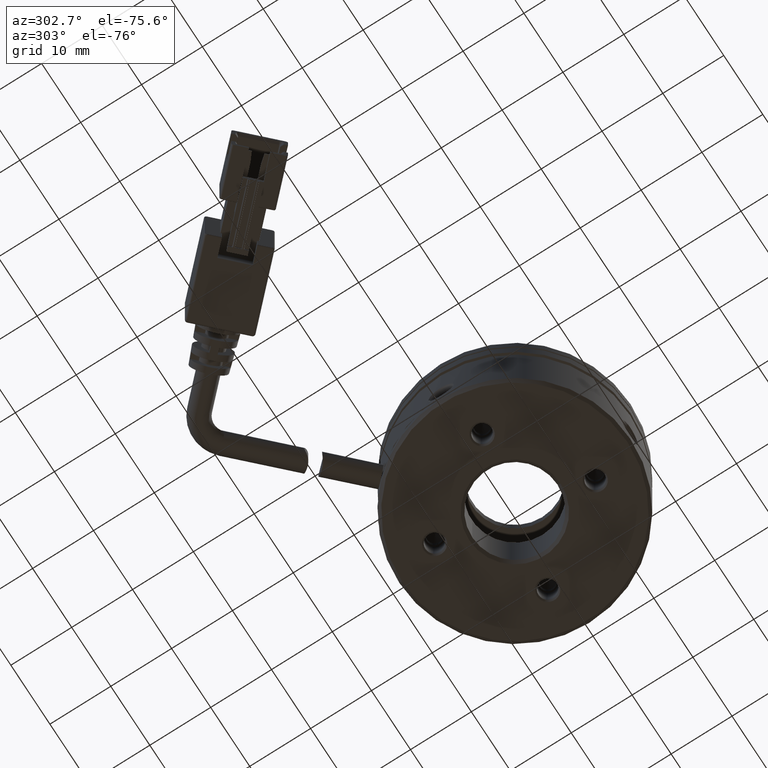
[diagram: clean part render]
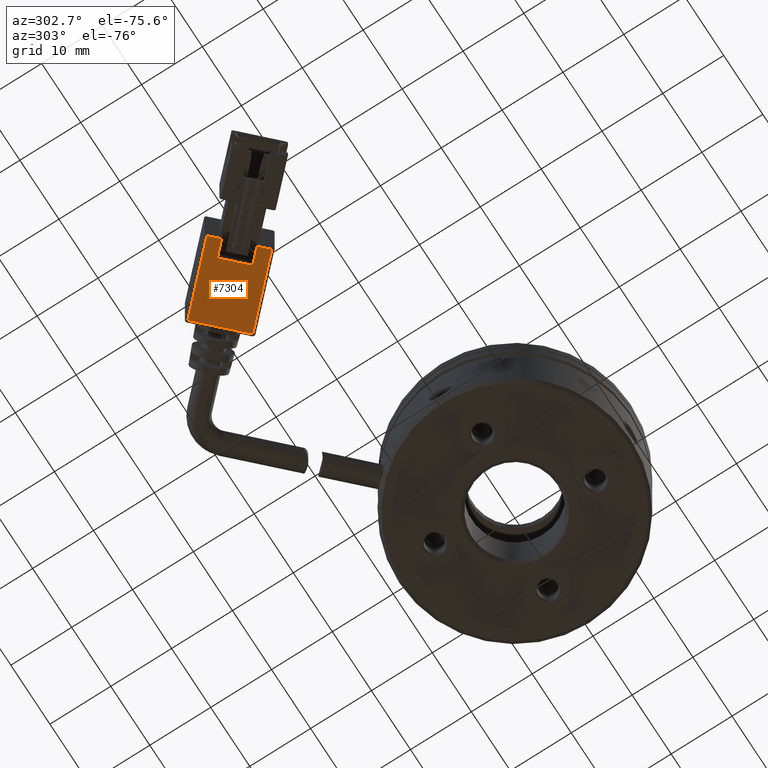
[diagram: same view with one face highlighted and labeled with its STEP entity id]
A machine part, auxiliary view. The second image highlights one B-rep face of the part: STEP entity #7304.
In plain terms, the highlighted planar face has unit normal (-0, 0, 1).
Its self-contained STEP definition (entity closure, byte-faithful):
#388 = DIRECTION ( 'NONE',  ( 0.7071067811865522400, -0.7071067811865428000, 3.020538365981216500E-016 ) ) ;
#424 = EDGE_CURVE ( 'NONE', #7863, #3379, #24729, .T. ) ;
#631 = ORIENTED_EDGE ( 'NONE', *, *, #3839, .F. ) ;
#1102 = VERTEX_POINT ( 'NONE', #16644 ) ;
#2399 = CARTESIAN_POINT ( 'NONE',  ( -56.78067452927975000, 14.63711037056118500, -10.13508365365980500 ) ) ;
#2687 = VECTOR ( 'NONE', #388, 1000.000000000000000 ) ;
#3047 = CARTESIAN_POINT ( 'NONE',  ( -49.85102807365152700, 7.424621202458443000, -10.13508365365980300 ) ) ;
#3108 = LINE ( 'NONE', #3821, #10883 ) ;
#3379 = VERTEX_POINT ( 'NONE', #13252 ) ;
#3488 = ORIENTED_EDGE ( 'NONE', *, *, #17265, .F. ) ;
#3735 = LINE ( 'NONE', #6336, #12700 ) ;
#3821 = CARTESIAN_POINT ( 'NONE',  ( -47.72970773009190300, 9.545941546018102700, -10.13508365365980300 ) ) ;
#3839 = EDGE_CURVE ( 'NONE', #7510, #7233, #3108, .T. ) ;
#4015 = VECTOR ( 'NONE', #16318, 999.9999999999998900 ) ;
#4418 = FACE_OUTER_BOUND ( 'NONE', #24229, .T. ) ;
#4586 = EDGE_CURVE ( 'NONE', #16395, #1102, #17335, .T. ) ;
#4733 = CARTESIAN_POINT ( 'NONE',  ( -56.49783181680512500, 14.35426765808656700, -10.13508365365980700 ) ) ;
#4877 = PLANE ( 'NONE',  #5525 ) ;
#4946 = ORIENTED_EDGE ( 'NONE', *, *, #424, .F. ) ;
#4962 = DIRECTION ( 'NONE',  ( -0.7071067811865522400, 0.7071067811865428000, -3.020538365981216500E-016 ) ) ;
#5525 = AXIS2_PLACEMENT_3D ( 'NONE', #3047, #16420, #4962 ) ;
#5772 = ORIENTED_EDGE ( 'NONE', *, *, #20619, .T. ) ;
#5858 = CARTESIAN_POINT ( 'NONE',  ( -56.78067452927975000, 14.63711037056118500, -10.13508365365980500 ) ) ;
#5887 = DIRECTION ( 'NONE',  ( 0.7071067811865428000, 0.7071067811865522400, 1.682570589009794600E-016 ) ) ;
#6336 = CARTESIAN_POINT ( 'NONE',  ( -56.63925317304242700, 14.21284630184925400, -10.13508365365980700 ) ) ;
#6570 = CARTESIAN_POINT ( 'NONE',  ( -49.49747468305829300, 11.31370849898446600, -10.13508365365980300 ) ) ;
#6946 = CARTESIAN_POINT ( 'NONE',  ( -49.99244942988884300, 7.848885271170374300, -10.13508365365980200 ) ) ;
#7233 = VERTEX_POINT ( 'NONE', #6570 ) ;
#7304 = ADVANCED_FACE ( 'NONE', ( #4418 ), #4877, .F. ) ;
#7510 = VERTEX_POINT ( 'NONE', #15161 ) ;
#7757 = DIRECTION ( 'NONE',  ( 0.7071067811865522400, -0.7071067811865428000, 3.020538365981216500E-016 ) ) ;
#7811 = VERTEX_POINT ( 'NONE', #16392 ) ;
#7863 = VERTEX_POINT ( 'NONE', #6946 ) ;
#8227 = DIRECTION ( 'NONE',  ( -0.7071067811865428000, -0.7071067811865522400, -1.682570589009794600E-016 ) ) ;
#8787 = EDGE_CURVE ( 'NONE', #13388, #7863, #15660, .T. ) ;
#9502 = VECTOR ( 'NONE', #5887, 1000.000000000000000 ) ;
#10145 = ORIENTED_EDGE ( 'NONE', *, *, #23973, .T. ) ;
#10883 = VECTOR ( 'NONE', #15292, 1000.000000000000000 ) ;
#11951 = CARTESIAN_POINT ( 'NONE',  ( -55.15432893255067600, 12.72792206135752700, -10.13508365365980700 ) ) ;
#12700 = VECTOR ( 'NONE', #8227, 1000.000000000000000 ) ;
#13233 = CARTESIAN_POINT ( 'NONE',  ( -40.94148263070108800, 16.33416664540900200, -10.13508365365980200 ) ) ;
#13252 = CARTESIAN_POINT ( 'NONE',  ( -41.22432534317570700, 16.61700935788362100, -10.13508365365980000 ) ) ;
#13388 = VERTEX_POINT ( 'NONE', #21563 ) ;
#15108 = EDGE_CURVE ( 'NONE', #3379, #7811, #15729, .T. ) ;
#15161 = CARTESIAN_POINT ( 'NONE',  ( -53.03300858899105200, 14.84924240491717900, -10.13508365365980500 ) ) ;
#15292 = DIRECTION ( 'NONE',  ( 0.7071067811865522400, -0.7071067811865428000, 3.020538365981216500E-016 ) ) ;
#15660 = LINE ( 'NONE', #5858, #20118 ) ;
#15729 = LINE ( 'NONE', #13233, #20805 ) ;
#15965 = CARTESIAN_POINT ( 'NONE',  ( -50.13387078612615300, 7.707463914933061500, -10.13508365365980300 ) ) ;
#16318 = DIRECTION ( 'NONE',  ( 0.7071067811865430200, 0.7071067811865521200, 1.682570589009795100E-016 ) ) ;
#16392 = CARTESIAN_POINT ( 'NONE',  ( -47.72970773009198800, 23.12239174479981300, -10.13508365365980300 ) ) ;
#16395 = VERTEX_POINT ( 'NONE', #4733 ) ;
#16420 = DIRECTION ( 'NONE',  ( -3.325600234733327400E-016, 9.460860881055602200E-017, 1.000000000000000000 ) ) ;
#16644 = CARTESIAN_POINT ( 'NONE',  ( -55.01290757631337400, 12.86934341759483600, -10.13508365365980500 ) ) ;
#17265 = EDGE_CURVE ( 'NONE', #7811, #16395, #3735, .T. ) ;
#17335 = LINE ( 'NONE', #2399, #2687 ) ;
#17452 = LINE ( 'NONE', #11951, #22516 ) ;
#17928 = ORIENTED_EDGE ( 'NONE', *, *, #8787, .F. ) ;
#19265 = LINE ( 'NONE', #19969, #4015 ) ;
#19969 = CARTESIAN_POINT ( 'NONE',  ( -51.61879502661791700, 9.192388155424808400, -10.13508365365980300 ) ) ;
#20118 = VECTOR ( 'NONE', #7757, 1000.000000000000000 ) ;
#20619 = EDGE_CURVE ( 'NONE', #7510, #1102, #17452, .T. ) ;
#20805 = VECTOR ( 'NONE', #24649, 1000.000000000000000 ) ;
#21563 = CARTESIAN_POINT ( 'NONE',  ( -51.47737367038061500, 9.333809511662121100, -10.13508365365980300 ) ) ;
#22243 = ORIENTED_EDGE ( 'NONE', *, *, #4586, .F. ) ;
#22516 = VECTOR ( 'NONE', #23407, 999.9999999999998900 ) ;
#23345 = ORIENTED_EDGE ( 'NONE', *, *, #15108, .F. ) ;
#23407 = DIRECTION ( 'NONE',  ( -0.7071067811865430200, -0.7071067811865521200, -1.682570589009795100E-016 ) ) ;
#23973 = EDGE_CURVE ( 'NONE', #13388, #7233, #19265, .T. ) ;
#24229 = EDGE_LOOP ( 'NONE', ( #17928, #10145, #631, #5772, #22243, #3488, #23345, #4946 ) ) ;
#24649 = DIRECTION ( 'NONE',  ( -0.7071067811865522400, 0.7071067811865428000, -3.020538365981216500E-016 ) ) ;
#24729 = LINE ( 'NONE', #15965, #9502 ) ;